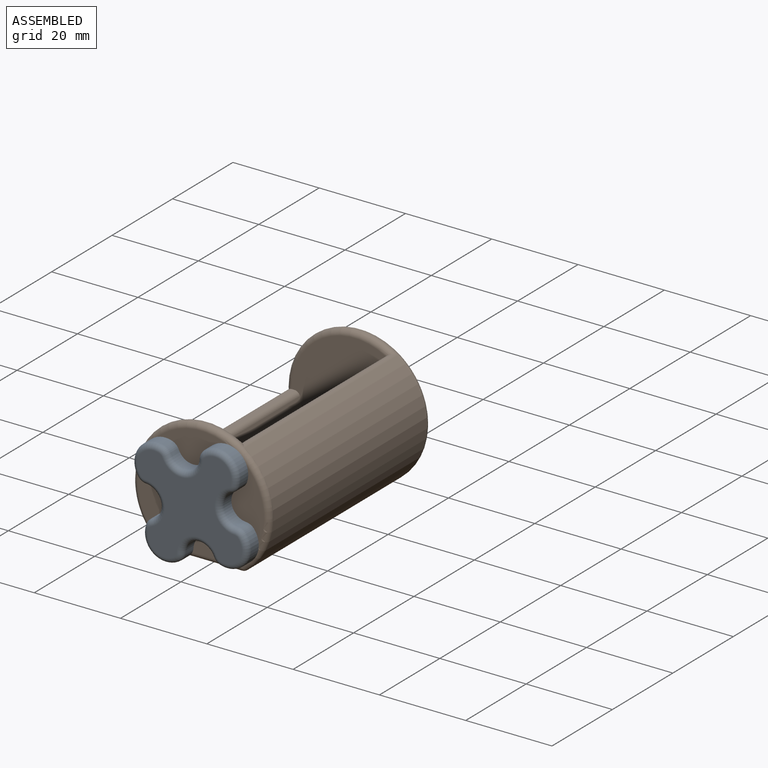
[diagram: assembled view]
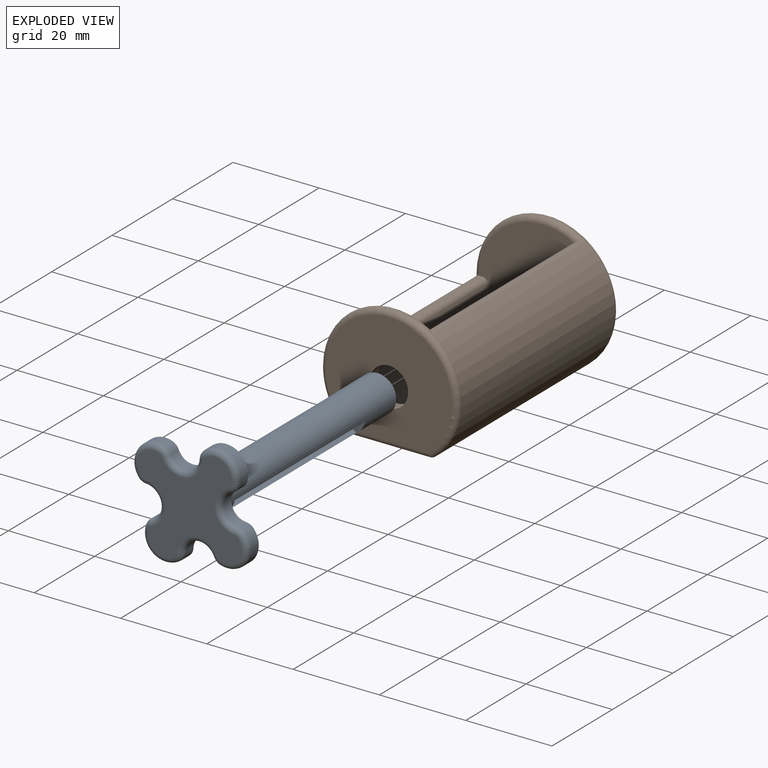
[diagram: exploded view]
GUIDED TOUR — MATED ASSEMBLY (Onshape document d453320b719630a19ccbb0db, AutoMate assembly d453320b719630a19ccbb0db_a44496a7e6a7ef12623a997a_5b4aa4a2698dda8c8e93bc68_default)

This assembly has 3 components, labeled P0..P2 below (a component is one placed occurrence of a part; the same part can appear more than once), held together by 2 mates. A mate is a constraint between two components; its type names the relative motion it leaves free:
  FASTENED — locks the two components together rigidly (no relative motion),
  REVOLUTE — leaves rotation about the listed axis free (a hinge).
Axis/direction vectors are unit vectors and 'through' points are millimeter coordinates, both in the assembly's world frame.

MATES
  1. REVOLUTE "Revolute 1": P0 <-> P1, axis (0.000, 1.000, 0.000) through (0.00, -53.34, 12.70) mm
  2. FASTENED "Fastened 1": P0 <-> P2, direction (0.000, 1.000, 0.000) through (0.00, 5.08, 12.70) mm

ASSEMBLY ORDER
  1. P0 — the base component [order heuristic]
  2. P1 [order heuristic]
  3. P2 [order heuristic]
Order-tag legend:
  [order heuristic] — this assembly is geometrically interlocked (no collision-free removal order exists), so components are listed in mate-graph order; insertion feasibility is not verified.

Of the 3 components, 3 carry the full construction recipe — the FeatureScript program that regenerates the part's solid from scratch; the rest are supplied as boundary geometry only.
Each toured component is shown spotlighted twice — in the assembled view, then in the exploded view, where a leader line traces a displaced component back to its assembled socket (saturated green if recipe-attached, orange if geometry-only; every other component desaturated gray) — followed by its recipe or geometry summary and the mates that hold it.
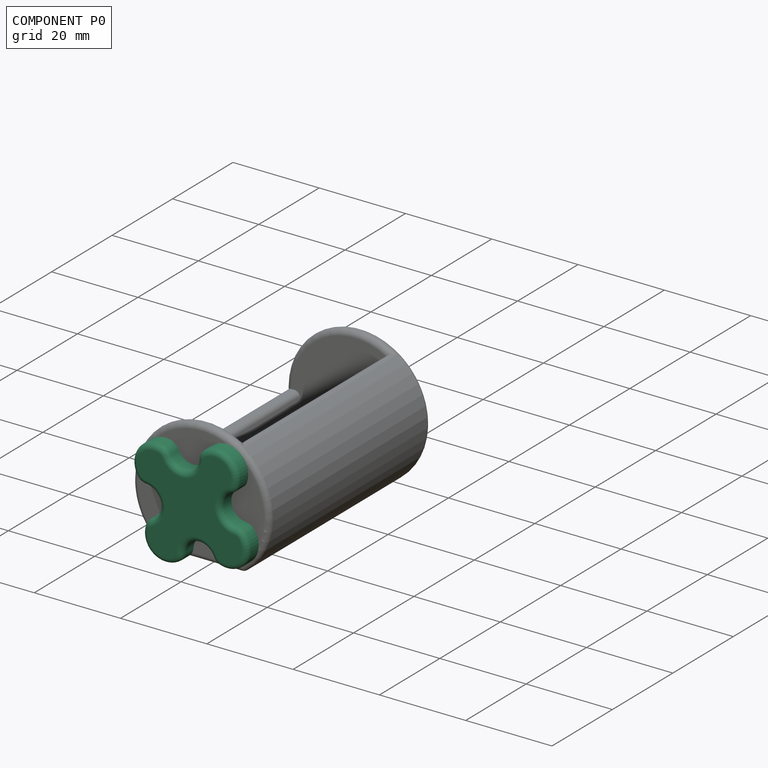
[diagram: component P0 — assembled]
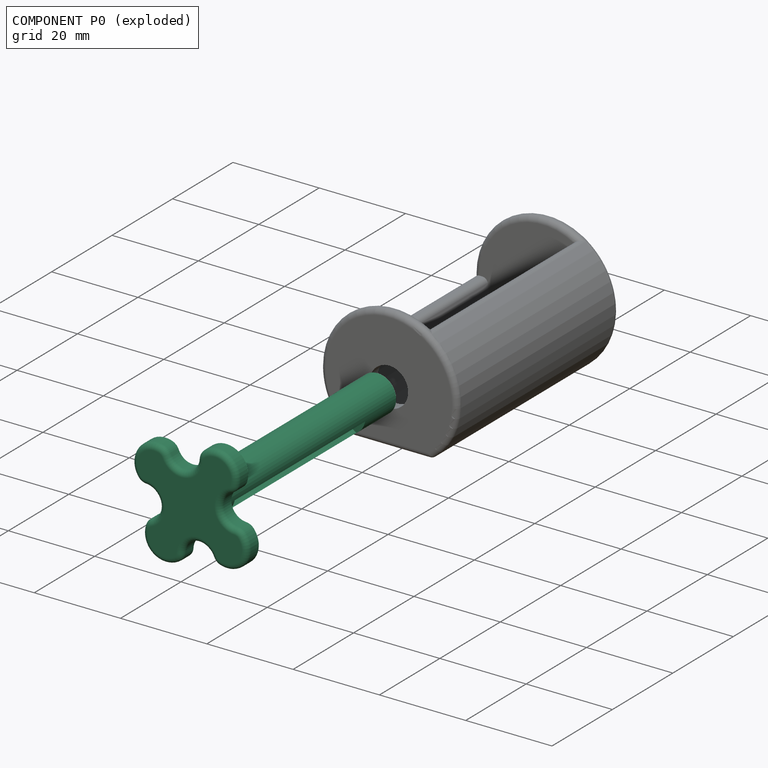
[diagram: component P0 — exploded]
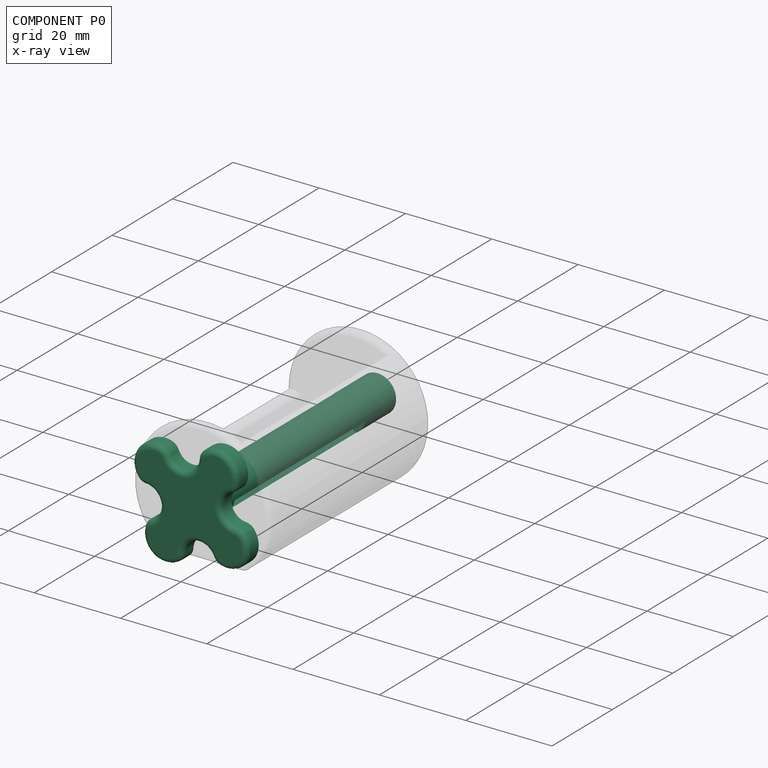
[diagram: component P0 — x-ray view]
COMPONENT P0 — recipe-attached (CADFS 00831639, mesh-verified: the recipe's output STEP matches this component's geometry to below the mesh-comparison resolution (tessellation chordal tolerance ~0.114 mm)).
Held by: REVOLUTE mate "Revolute 1" to P1; FASTENED mate "Fastened 1" to P2.
Construction recipe (FeatureScript — the CAD program that rebuilds this solid; sketch coordinates are in the units given by the * unit suffixes, e.g. mm):

FeatureScript 1511;
import(path : "onshape/std/geometry.fs", version : "1511.0");
import(path : "onshape/std/common.fs", version : "1511.0");
const mm = millimeter;
const VERTEX = EntityType.VERTEX;
const EDGE = EntityType.EDGE;
const FACE = EntityType.FACE;
const BODY = EntityType.BODY;
function v(x, y){return vector(x, y);}
function OD(order){return orderDisambiguation(order);}
function OSD(set){return originalSetDisambiguation(set);}
function TD(topology){return topologyDisambiguation(topology);}
function TDD(query){return trueDependencyDisambiguation(query);}
function sQuery(a, b, c) {return sketchEntityQuery(a, b, c);}

annotation { "Feature Type Name" : "Feature", "Feature Type Description" : "" }
export const myFeature = defineFeature(function(context is Context, id is Id, definition is map)
    precondition{}
    {
        {
            var Q0;
            Q0=qCreatedBy(makeId("Top.planeOp"),FACE);
            var sketch = newSketch(context, id + "F0", { "sketchPlane" : qUnion([Q0])});
            skArc(sketch, "E0", {"start": v(5.08, 10.16) * mm, "mid": v(0, 15.24) * mm, "end": v(-5.08, 10.16) * mm});
            skLineSegment(sketch, "E1", {"start": v(0, 14.9) * mm, "end": v(0, -12.6) * mm, "construction": true});
            skArc(sketch, "E2", {"start": v(5.08, 10.16) * mm, "mid": v(5.08, 5.08) * mm, "end": v(10.16, 5.08) * mm});
            skLineSegment(sketch, "E3.0", {"start": v(10.16, 5.08) * mm, "end": v(5.08, 10.16) * mm, "construction": true});
            skLineSegment(sketch, "E4", {"start": v(-7.19, -7.19) * mm, "end": v(7.26, 7.26) * mm, "construction": true});
            skLineSegment(sketch, "E5", {"start": v(-9.15, 9.15) * mm, "end": v(9.27, -9.27) * mm, "construction": true});
            skPoint(sketch, "E6", {"position": v(0, 0) * mm});
            skLineSegment(sketch, "E7", {"start": v(-16.53, 0) * mm, "end": v(16.65, 0) * mm, "construction": true});
            skLineSegment(sketch, "E8", {"start": v(-4.19, 19.43) * mm, "end": v(17.03, -1.8) * mm, "construction": true});
            skArc(sketch, "E9.1.0", {"start": v(10.16, -5.08) * mm, "mid": v(15.24, 0) * mm, "end": v(10.16, 5.08) * mm});
            skArc(sketch, "E9.1.1", {"start": v(10.16, -5.08) * mm, "mid": v(5.08, -5.08) * mm, "end": v(5.08, -10.16) * mm});
            skArc(sketch, "E9.2.0", {"start": v(-5.08, -10.16) * mm, "mid": v(0, -15.24) * mm, "end": v(5.08, -10.16) * mm});
            skArc(sketch, "E9.2.1", {"start": v(-5.08, -10.16) * mm, "mid": v(-5.08, -5.08) * mm, "end": v(-10.16, -5.08) * mm});
            skArc(sketch, "E9.3.0", {"start": v(-10.16, 5.08) * mm, "mid": v(-15.24, 0) * mm, "end": v(-10.16, -5.08) * mm});
            skArc(sketch, "E9.3.1", {"start": v(-10.16, 5.08) * mm, "mid": v(-5.08, 5.08) * mm, "end": v(-5.08, 10.16) * mm});
            skLineSegment(sketch, "E9.anchor1", {"start": v(0, 0) * mm, "end": v(-5.08, 10.16) * mm, "construction": true});
            skLineSegment(sketch, "E9.anchor2", {"start": v(0, 0) * mm, "end": v(-10.16, -5.08) * mm, "construction": true});
            skCircle(sketch, "E10", {"center": v(0, 0) * mm, "radius": 4.32 * mm});
            skSolve(sketch);
        }
        {
            var Q0;
            Q0=makeQuery(id+"F0.imprint","IMPRINT",FACE,{"disambiguationData":[TD([[makeQuery(id+"F0.imprint","IMPRINT",EDGE,{"derivedFrom":sQuery(id+"F0.wireOp",EDGE,"E0")}),1.0]])]});
            extrude(context, id + "F1", {"entities" : qUnion([Q0]), "depth" : 3.8 * mm, "offsetDistance" : 25.4 * mm});
        }
        {
            var Q0;
            Q0=makeQuery(id+"F0.imprint","IMPRINT",FACE,{"disambiguationData":[TD([[makeQuery(id+"F0.imprint","IMPRINT",EDGE,{"derivedFrom":sQuery(id+"F0.wireOp",EDGE,"E10")}),1.0]])]});
            extrude(context, id + "F2", {"entities" : qUnion([Q0]), "operationType" : NewBodyOperationType.ADD, "depth" : 52.07 * mm, "offsetDistance" : 25.4 * mm});
        }
        {
            var Q0;
            Q0=makeQuery(id+"F2.opExtrude","CAP_FACE",FACE,{"disambiguationData":[OSD([sQuery(id+"F0.wireOp",EDGE,"E10")])],"isStart":false});
            var sketch = newSketch(context, id + "F3", { "sketchPlane" : qUnion([Q0])});
            skLineSegment(sketch, "E11.bottom", {"start": v(1.78, 4.61) * mm, "end": v(-1.78, 4.61) * mm});
            skLineSegment(sketch, "E11.top", {"start": v(1.78, -4.61) * mm, "end": v(-1.78, -4.61) * mm});
            skLineSegment(sketch, "E11.left", {"start": v(1.78, 4.61) * mm, "end": v(1.78, -4.61) * mm});
            skLineSegment(sketch, "E11.right", {"start": v(-1.78, 4.61) * mm, "end": v(-1.78, -4.61) * mm});
            skPoint(sketch, "E11.middle", {"position": v(0, 0) * mm});
            skSolve(sketch);
        }
        {
            var Q0;
            {var subQ0=sQuery(id+"F3.wireOp",EDGE,"E11.left");var subQ1=makeQuery(id+"F2.opExtrude","CAP_EDGE",EDGE,{"disambiguationData":[OSD([sQuery(id+"F0.wireOp",EDGE,"E10")])],"isStart":false});var subQ2=makeQuery(id+"F3.imprint","INTERSECT",VERTEX,{"disambiguationData":[OD(0.0)],"derivedFrom":[subQ1,subQ0]});Q0=makeQuery(id+"F3.imprint","IMPRINT",FACE,{"disambiguationData":[TD([[makeQuery(id+"F3.imprint","IMPRINT",EDGE,{"disambiguationData":[TD([[subQ2,-1.0]])],"derivedFrom":subQ0}),-1.0]])]});}
            extrude(context, id + "F4", {"entities" : qUnion([Q0]), "operationType" : NewBodyOperationType.REMOVE, "oppositeDirection" : true, "depth" : 43.18 * mm, "offsetDistance" : 25.4 * mm});
        }
        {
            var Q0;
            {var subQ0=sQuery(id+"F0.wireOp",EDGE,"E10");Q0=makeQuery(id+"F4.boolean.opBoolean","SPLIT",FACE,{"disambiguationData":[TD([makeQuery(id+"F4.opExtrude","SWEPT_FACE",FACE,{"disambiguationData":[OSD([sQuery(id+"F3.wireOp",EDGE,"E11.left")])]})])],"derivedFrom":makeQuery(id+"F2.opExtrude","CAP_FACE",FACE,{"disambiguationData":[OSD([subQ0])],"isStart":false})});}
            var sketch = newSketch(context, id + "F5", { "sketchPlane" : qUnion([Q0])});
            skCircle(sketch, "E12", {"center": v(0, 0) * mm, "radius": 4.32 * mm});
            skSolve(sketch);
        }
        {
            var Q0;
            {var subQ1=makeQuery(id+"F4.boolean.opBoolean","COPY",EDGE,{"derivedFrom":makeQuery(id+"F4.opExtrude","CAP_EDGE",EDGE,{"disambiguationData":[OSD([sQuery(id+"F3.wireOp",EDGE,"E11.left")])],"isStart":true})});Q0=makeQuery(id+"F5.imprint","IMPRINT",FACE,{"disambiguationData":[TD([[makeQuery(id+"F5.imprint","IMPRINT",EDGE,{"derivedFrom":subQ1}),-1.0]])]});}
            var Q1;
            {var subQ1=makeQuery(id+"F4.boolean.opBoolean","COPY",EDGE,{"derivedFrom":makeQuery(id+"F4.opExtrude","CAP_EDGE",EDGE,{"disambiguationData":[OSD([sQuery(id+"F3.wireOp",EDGE,"E11.left")])],"isStart":true})});Q1=makeQuery(id+"F5.imprint","IMPRINT",FACE,{"disambiguationData":[TD([[makeQuery(id+"F5.imprint","IMPRINT",EDGE,{"derivedFrom":subQ1}),1.0]])]});}
            extrude(context, id + "F6", {"entities" : qUnion([Q0, Q1]), "operationType" : NewBodyOperationType.ADD, "depth" : 10.16 * mm, "offsetDistance" : 25.4 * mm});
        }
        {
            var Q0;
            Q0=makeQuery(id+"F1.opExtrude","SWEPT_EDGE",EDGE,{"disambiguationData":[OSD([sQuery(id+"F0.wireOp",EDGE,"E9.2.0"),sQuery(id+"F0.wireOp",EDGE,"E9.2.1")])]});
            var Q1;
            Q1=makeQuery(id+"F1.opExtrude","SWEPT_EDGE",EDGE,{"disambiguationData":[OSD([sQuery(id+"F0.wireOp",EDGE,"E9.2.1"),sQuery(id+"F0.wireOp",EDGE,"E9.3.0")])]});
            var Q2;
            Q2=makeQuery(id+"F1.opExtrude","SWEPT_EDGE",EDGE,{"disambiguationData":[OSD([sQuery(id+"F0.wireOp",EDGE,"E9.1.1"),sQuery(id+"F0.wireOp",EDGE,"E9.2.0")])]});
            var Q3;
            Q3=makeQuery(id+"F1.opExtrude","SWEPT_EDGE",EDGE,{"disambiguationData":[OSD([sQuery(id+"F0.wireOp",EDGE,"E9.1.0"),sQuery(id+"F0.wireOp",EDGE,"E9.1.1")])]});
            var Q4;
            Q4=makeQuery(id+"F1.opExtrude","SWEPT_EDGE",EDGE,{"disambiguationData":[OSD([sQuery(id+"F0.wireOp",EDGE,"E2"),sQuery(id+"F0.wireOp",EDGE,"E9.1.0")])]});
            var Q5;
            Q5=makeQuery(id+"F1.opExtrude","SWEPT_EDGE",EDGE,{"disambiguationData":[OSD([sQuery(id+"F0.wireOp",EDGE,"E0"),sQuery(id+"F0.wireOp",EDGE,"E2")])]});
            var Q6;
            Q6=makeQuery(id+"F1.opExtrude","SWEPT_EDGE",EDGE,{"disambiguationData":[OSD([sQuery(id+"F0.wireOp",EDGE,"E9.3.0"),sQuery(id+"F0.wireOp",EDGE,"E9.3.1")])]});
            var Q7;
            Q7=makeQuery(id+"F1.opExtrude","SWEPT_EDGE",EDGE,{"disambiguationData":[OSD([sQuery(id+"F0.wireOp",EDGE,"E0"),sQuery(id+"F0.wireOp",EDGE,"E9.3.1")])]});
            fillet(context, id + "F7", {"entities" : qUnion([Q0, Q1, Q2, Q3, Q4, Q5, Q6, Q7]), "radius" : 2.54 * mm, "tangentPropagation" : true, "allowEdgeOverflow" : false});
        }
        {
            var Q0;
            Q0=makeQuery(id+"F1.opExtrude","CAP_EDGE",EDGE,{"disambiguationData":[OSD([sQuery(id+"F0.wireOp",EDGE,"E9.3.0")])],"isStart":true});
            var Q1;
            Q1=makeQuery(id+"F1.opExtrude","CAP_EDGE",EDGE,{"disambiguationData":[OSD([sQuery(id+"F0.wireOp",EDGE,"E9.2.1")])],"isStart":true});
            var Q2;
            Q2=makeQuery(id+"F1.opExtrude","CAP_EDGE",EDGE,{"disambiguationData":[OSD([sQuery(id+"F0.wireOp",EDGE,"E9.2.0")])],"isStart":true});
            var Q3;
            {var subQ0=sQuery(id+"F0.wireOp",EDGE,"E10");var subQ1=sQuery(id+"F0.wireOp",EDGE,"E9.3.0");var subQ2=sQuery(id+"F0.wireOp",EDGE,"E9.2.1");Q3=makeQuery(id+"F7.opFillet","BLEND_EDGE",EDGE,{"blendedFrom":[makeQuery(id+"F1.opExtrude","SWEPT_EDGE",EDGE,{"disambiguationData":[OSD([subQ2,subQ1])]}),makeQuery(id+"F2.boolean.opBoolean","MERGE",FACE,{"derivedFrom":[makeQuery(id+"F1.opExtrude","CAP_FACE",FACE,{"disambiguationData":[OSD([sQuery(id+"F0.wireOp",EDGE,"E0"),sQuery(id+"F0.wireOp",EDGE,"E2"),sQuery(id+"F0.wireOp",EDGE,"E9.1.0"),sQuery(id+"F0.wireOp",EDGE,"E9.1.1"),sQuery(id+"F0.wireOp",EDGE,"E9.2.0"),subQ2,subQ1,sQuery(id+"F0.wireOp",EDGE,"E9.3.1"),subQ0])],"isStart":true}),makeQuery(id+"F2.opExtrude","CAP_FACE",FACE,{"disambiguationData":[OSD([subQ0])],"isStart":true})]})],"blendedInto":[makeQuery(id+"F2.boolean.opBoolean","MERGE",FACE,{"derivedFrom":[makeQuery(id+"F1.opExtrude","CAP_FACE",FACE,{"disambiguationData":[OSD([sQuery(id+"F0.wireOp",EDGE,"E0"),sQuery(id+"F0.wireOp",EDGE,"E2"),sQuery(id+"F0.wireOp",EDGE,"E9.1.0"),sQuery(id+"F0.wireOp",EDGE,"E9.1.1"),sQuery(id+"F0.wireOp",EDGE,"E9.2.0"),subQ2,subQ1,sQuery(id+"F0.wireOp",EDGE,"E9.3.1"),subQ0])],"isStart":true}),makeQuery(id+"F2.opExtrude","CAP_FACE",FACE,{"disambiguationData":[OSD([subQ0])],"isStart":true})]})]});}
            var Q4;
            Q4=makeQuery(id+"F1.opExtrude","CAP_EDGE",EDGE,{"disambiguationData":[OSD([sQuery(id+"F0.wireOp",EDGE,"E9.1.1")])],"isStart":true});
            var Q5;
            {var subQ0=sQuery(id+"F0.wireOp",EDGE,"E10");var subQ1=sQuery(id+"F0.wireOp",EDGE,"E9.2.0");var subQ2=sQuery(id+"F0.wireOp",EDGE,"E9.1.1");Q5=makeQuery(id+"F7.opFillet","BLEND_EDGE",EDGE,{"blendedFrom":[makeQuery(id+"F1.opExtrude","SWEPT_EDGE",EDGE,{"disambiguationData":[OSD([subQ2,subQ1])]}),makeQuery(id+"F2.boolean.opBoolean","MERGE",FACE,{"derivedFrom":[makeQuery(id+"F1.opExtrude","CAP_FACE",FACE,{"disambiguationData":[OSD([sQuery(id+"F0.wireOp",EDGE,"E0"),sQuery(id+"F0.wireOp",EDGE,"E2"),sQuery(id+"F0.wireOp",EDGE,"E9.1.0"),subQ2,subQ1,sQuery(id+"F0.wireOp",EDGE,"E9.2.1"),sQuery(id+"F0.wireOp",EDGE,"E9.3.0"),sQuery(id+"F0.wireOp",EDGE,"E9.3.1"),subQ0])],"isStart":true}),makeQuery(id+"F2.opExtrude","CAP_FACE",FACE,{"disambiguationData":[OSD([subQ0])],"isStart":true})]})],"blendedInto":[makeQuery(id+"F2.boolean.opBoolean","MERGE",FACE,{"derivedFrom":[makeQuery(id+"F1.opExtrude","CAP_FACE",FACE,{"disambiguationData":[OSD([sQuery(id+"F0.wireOp",EDGE,"E0"),sQuery(id+"F0.wireOp",EDGE,"E2"),sQuery(id+"F0.wireOp",EDGE,"E9.1.0"),subQ2,subQ1,sQuery(id+"F0.wireOp",EDGE,"E9.2.1"),sQuery(id+"F0.wireOp",EDGE,"E9.3.0"),sQuery(id+"F0.wireOp",EDGE,"E9.3.1"),subQ0])],"isStart":true}),makeQuery(id+"F2.opExtrude","CAP_FACE",FACE,{"disambiguationData":[OSD([subQ0])],"isStart":true})]})]});}
            var Q6;
            {var subQ0=sQuery(id+"F0.wireOp",EDGE,"E10");var subQ1=sQuery(id+"F0.wireOp",EDGE,"E9.1.1");var subQ2=sQuery(id+"F0.wireOp",EDGE,"E9.1.0");Q6=makeQuery(id+"F7.opFillet","BLEND_EDGE",EDGE,{"blendedFrom":[makeQuery(id+"F1.opExtrude","SWEPT_EDGE",EDGE,{"disambiguationData":[OSD([subQ2,subQ1])]}),makeQuery(id+"F2.boolean.opBoolean","MERGE",FACE,{"derivedFrom":[makeQuery(id+"F1.opExtrude","CAP_FACE",FACE,{"disambiguationData":[OSD([sQuery(id+"F0.wireOp",EDGE,"E0"),sQuery(id+"F0.wireOp",EDGE,"E2"),subQ2,subQ1,sQuery(id+"F0.wireOp",EDGE,"E9.2.0"),sQuery(id+"F0.wireOp",EDGE,"E9.2.1"),sQuery(id+"F0.wireOp",EDGE,"E9.3.0"),sQuery(id+"F0.wireOp",EDGE,"E9.3.1"),subQ0])],"isStart":true}),makeQuery(id+"F2.opExtrude","CAP_FACE",FACE,{"disambiguationData":[OSD([subQ0])],"isStart":true})]})],"blendedInto":[makeQuery(id+"F2.boolean.opBoolean","MERGE",FACE,{"derivedFrom":[makeQuery(id+"F1.opExtrude","CAP_FACE",FACE,{"disambiguationData":[OSD([sQuery(id+"F0.wireOp",EDGE,"E0"),sQuery(id+"F0.wireOp",EDGE,"E2"),subQ2,subQ1,sQuery(id+"F0.wireOp",EDGE,"E9.2.0"),sQuery(id+"F0.wireOp",EDGE,"E9.2.1"),sQuery(id+"F0.wireOp",EDGE,"E9.3.0"),sQuery(id+"F0.wireOp",EDGE,"E9.3.1"),subQ0])],"isStart":true}),makeQuery(id+"F2.opExtrude","CAP_FACE",FACE,{"disambiguationData":[OSD([subQ0])],"isStart":true})]})]});}
            var Q7;
            Q7=makeQuery(id+"F1.opExtrude","CAP_EDGE",EDGE,{"disambiguationData":[OSD([sQuery(id+"F0.wireOp",EDGE,"E9.1.0")])],"isStart":true});
            var Q8;
            {var subQ0=sQuery(id+"F0.wireOp",EDGE,"E10");var subQ1=sQuery(id+"F0.wireOp",EDGE,"E9.1.0");var subQ2=sQuery(id+"F0.wireOp",EDGE,"E2");Q8=makeQuery(id+"F7.opFillet","BLEND_EDGE",EDGE,{"blendedFrom":[makeQuery(id+"F1.opExtrude","SWEPT_EDGE",EDGE,{"disambiguationData":[OSD([subQ2,subQ1])]}),makeQuery(id+"F2.boolean.opBoolean","MERGE",FACE,{"derivedFrom":[makeQuery(id+"F1.opExtrude","CAP_FACE",FACE,{"disambiguationData":[OSD([sQuery(id+"F0.wireOp",EDGE,"E0"),subQ2,subQ1,sQuery(id+"F0.wireOp",EDGE,"E9.1.1"),sQuery(id+"F0.wireOp",EDGE,"E9.2.0"),sQuery(id+"F0.wireOp",EDGE,"E9.2.1"),sQuery(id+"F0.wireOp",EDGE,"E9.3.0"),sQuery(id+"F0.wireOp",EDGE,"E9.3.1"),subQ0])],"isStart":true}),makeQuery(id+"F2.opExtrude","CAP_FACE",FACE,{"disambiguationData":[OSD([subQ0])],"isStart":true})]})],"blendedInto":[makeQuery(id+"F2.boolean.opBoolean","MERGE",FACE,{"derivedFrom":[makeQuery(id+"F1.opExtrude","CAP_FACE",FACE,{"disambiguationData":[OSD([sQuery(id+"F0.wireOp",EDGE,"E0"),subQ2,subQ1,sQuery(id+"F0.wireOp",EDGE,"E9.1.1"),sQuery(id+"F0.wireOp",EDGE,"E9.2.0"),sQuery(id+"F0.wireOp",EDGE,"E9.2.1"),sQuery(id+"F0.wireOp",EDGE,"E9.3.0"),sQuery(id+"F0.wireOp",EDGE,"E9.3.1"),subQ0])],"isStart":true}),makeQuery(id+"F2.opExtrude","CAP_FACE",FACE,{"disambiguationData":[OSD([subQ0])],"isStart":true})]})]});}
            var Q9;
            Q9=makeQuery(id+"F1.opExtrude","CAP_EDGE",EDGE,{"disambiguationData":[OSD([sQuery(id+"F0.wireOp",EDGE,"E2")])],"isStart":true});
            var Q10;
            {var subQ0=sQuery(id+"F0.wireOp",EDGE,"E10");var subQ1=sQuery(id+"F0.wireOp",EDGE,"E2");var subQ2=sQuery(id+"F0.wireOp",EDGE,"E0");Q10=makeQuery(id+"F7.opFillet","BLEND_EDGE",EDGE,{"blendedFrom":[makeQuery(id+"F1.opExtrude","SWEPT_EDGE",EDGE,{"disambiguationData":[OSD([subQ2,subQ1])]}),makeQuery(id+"F2.boolean.opBoolean","MERGE",FACE,{"derivedFrom":[makeQuery(id+"F1.opExtrude","CAP_FACE",FACE,{"disambiguationData":[OSD([subQ2,subQ1,sQuery(id+"F0.wireOp",EDGE,"E9.1.0"),sQuery(id+"F0.wireOp",EDGE,"E9.1.1"),sQuery(id+"F0.wireOp",EDGE,"E9.2.0"),sQuery(id+"F0.wireOp",EDGE,"E9.2.1"),sQuery(id+"F0.wireOp",EDGE,"E9.3.0"),sQuery(id+"F0.wireOp",EDGE,"E9.3.1"),subQ0])],"isStart":true}),makeQuery(id+"F2.opExtrude","CAP_FACE",FACE,{"disambiguationData":[OSD([subQ0])],"isStart":true})]})],"blendedInto":[makeQuery(id+"F2.boolean.opBoolean","MERGE",FACE,{"derivedFrom":[makeQuery(id+"F1.opExtrude","CAP_FACE",FACE,{"disambiguationData":[OSD([subQ2,subQ1,sQuery(id+"F0.wireOp",EDGE,"E9.1.0"),sQuery(id+"F0.wireOp",EDGE,"E9.1.1"),sQuery(id+"F0.wireOp",EDGE,"E9.2.0"),sQuery(id+"F0.wireOp",EDGE,"E9.2.1"),sQuery(id+"F0.wireOp",EDGE,"E9.3.0"),sQuery(id+"F0.wireOp",EDGE,"E9.3.1"),subQ0])],"isStart":true}),makeQuery(id+"F2.opExtrude","CAP_FACE",FACE,{"disambiguationData":[OSD([subQ0])],"isStart":true})]})]});}
            var Q11;
            Q11=makeQuery(id+"F1.opExtrude","CAP_EDGE",EDGE,{"disambiguationData":[OSD([sQuery(id+"F0.wireOp",EDGE,"E0")])],"isStart":true});
            var Q12;
            {var subQ0=sQuery(id+"F0.wireOp",EDGE,"E10");var subQ1=sQuery(id+"F0.wireOp",EDGE,"E9.3.1");var subQ2=sQuery(id+"F0.wireOp",EDGE,"E0");Q12=makeQuery(id+"F7.opFillet","BLEND_EDGE",EDGE,{"blendedFrom":[makeQuery(id+"F1.opExtrude","SWEPT_EDGE",EDGE,{"disambiguationData":[OSD([subQ2,subQ1])]}),makeQuery(id+"F2.boolean.opBoolean","MERGE",FACE,{"derivedFrom":[makeQuery(id+"F1.opExtrude","CAP_FACE",FACE,{"disambiguationData":[OSD([subQ2,sQuery(id+"F0.wireOp",EDGE,"E2"),sQuery(id+"F0.wireOp",EDGE,"E9.1.0"),sQuery(id+"F0.wireOp",EDGE,"E9.1.1"),sQuery(id+"F0.wireOp",EDGE,"E9.2.0"),sQuery(id+"F0.wireOp",EDGE,"E9.2.1"),sQuery(id+"F0.wireOp",EDGE,"E9.3.0"),subQ1,subQ0])],"isStart":true}),makeQuery(id+"F2.opExtrude","CAP_FACE",FACE,{"disambiguationData":[OSD([subQ0])],"isStart":true})]})],"blendedInto":[makeQuery(id+"F2.boolean.opBoolean","MERGE",FACE,{"derivedFrom":[makeQuery(id+"F1.opExtrude","CAP_FACE",FACE,{"disambiguationData":[OSD([subQ2,sQuery(id+"F0.wireOp",EDGE,"E2"),sQuery(id+"F0.wireOp",EDGE,"E9.1.0"),sQuery(id+"F0.wireOp",EDGE,"E9.1.1"),sQuery(id+"F0.wireOp",EDGE,"E9.2.0"),sQuery(id+"F0.wireOp",EDGE,"E9.2.1"),sQuery(id+"F0.wireOp",EDGE,"E9.3.0"),subQ1,subQ0])],"isStart":true}),makeQuery(id+"F2.opExtrude","CAP_FACE",FACE,{"disambiguationData":[OSD([subQ0])],"isStart":true})]})]});}
            var Q13;
            Q13=makeQuery(id+"F1.opExtrude","CAP_EDGE",EDGE,{"disambiguationData":[OSD([sQuery(id+"F0.wireOp",EDGE,"E9.3.1")])],"isStart":true});
            var Q14;
            {var subQ0=sQuery(id+"F0.wireOp",EDGE,"E10");Q14=makeQuery(id+"F2.boolean.opBoolean","MERGE",FACE,{"derivedFrom":[makeQuery(id+"F1.opExtrude","CAP_FACE",FACE,{"disambiguationData":[OSD([sQuery(id+"F0.wireOp",EDGE,"E0"),sQuery(id+"F0.wireOp",EDGE,"E2"),sQuery(id+"F0.wireOp",EDGE,"E9.1.0"),sQuery(id+"F0.wireOp",EDGE,"E9.1.1"),sQuery(id+"F0.wireOp",EDGE,"E9.2.0"),sQuery(id+"F0.wireOp",EDGE,"E9.2.1"),sQuery(id+"F0.wireOp",EDGE,"E9.3.0"),sQuery(id+"F0.wireOp",EDGE,"E9.3.1"),subQ0])],"isStart":true}),makeQuery(id+"F2.opExtrude","CAP_FACE",FACE,{"disambiguationData":[OSD([subQ0])],"isStart":true})]});}
            fillet(context, id + "F8", {"entities" : qUnion([Q0, Q1, Q2, Q3, Q4, Q5, Q6, Q7, Q8, Q9, Q10, Q11, Q12, Q13, Q14]), "radius" : 1.27 * mm, "tangentPropagation" : true, "allowEdgeOverflow" : false});
        }
    });
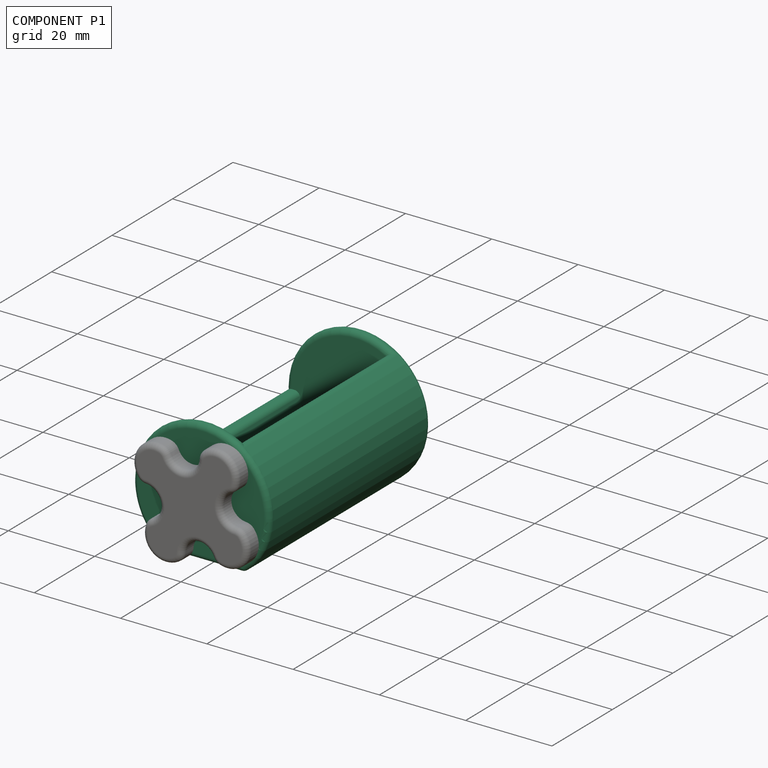
[diagram: component P1 — assembled]
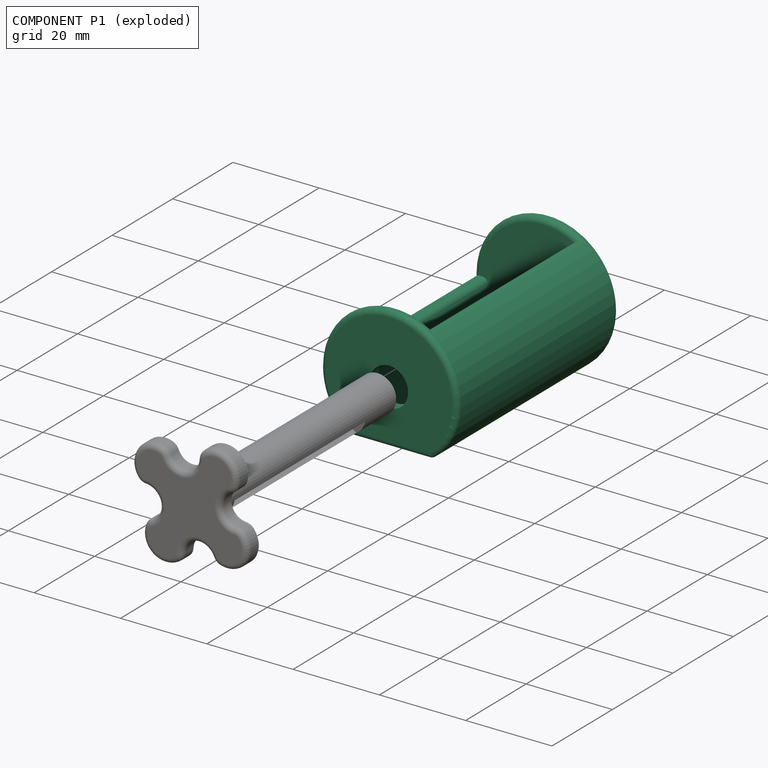
[diagram: component P1 — exploded]
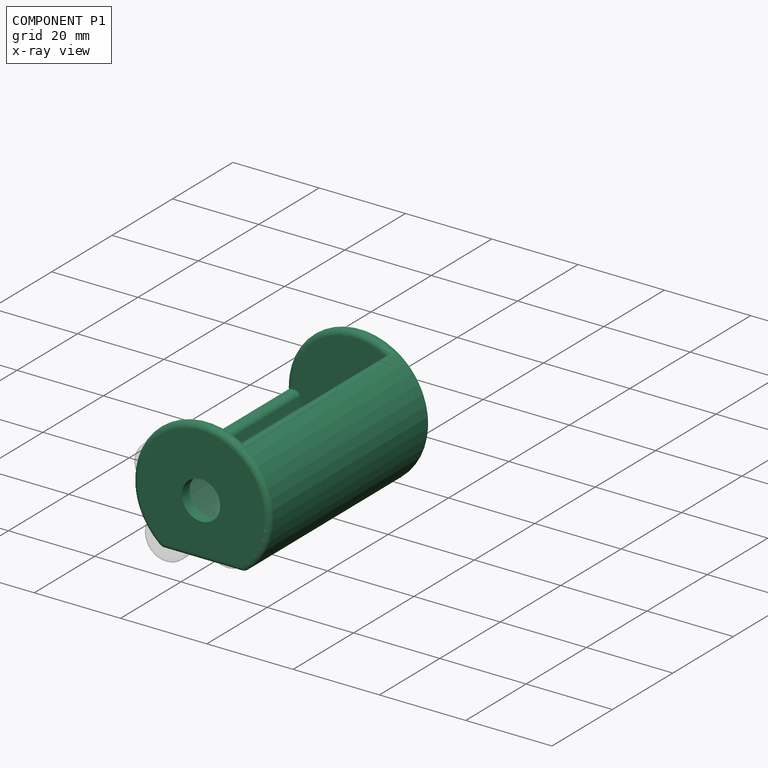
[diagram: component P1 — x-ray view]
COMPONENT P1 — recipe-attached (CADFS 00831638, mesh-verified: the recipe's output STEP matches this component's geometry to below the mesh-comparison resolution (tessellation chordal tolerance ~0.102 mm)).
Held by: REVOLUTE mate "Revolute 1" to P0.
Construction recipe (FeatureScript — the CAD program that rebuilds this solid; sketch coordinates are in the units given by the * unit suffixes, e.g. mm):

FeatureScript 1511;
import(path : "onshape/std/geometry.fs", version : "1511.0");
import(path : "onshape/std/common.fs", version : "1511.0");
const mm = millimeter;
const VERTEX = EntityType.VERTEX;
const EDGE = EntityType.EDGE;
const FACE = EntityType.FACE;
const BODY = EntityType.BODY;
function v(x, y){return vector(x, y);}
function OD(order){return orderDisambiguation(order);}
function OSD(set){return originalSetDisambiguation(set);}
function TD(topology){return topologyDisambiguation(topology);}
function TDD(query){return trueDependencyDisambiguation(query);}
function sQuery(a, b, c) {return sketchEntityQuery(a, b, c);}

annotation { "Feature Type Name" : "Feature", "Feature Type Description" : "" }
export const myFeature = defineFeature(function(context is Context, id is Id, definition is map)
    precondition{}
    {
        {
            var Q0;
            Q0=qCreatedBy(makeId("Front.planeOp"),FACE);
            var sketch = newSketch(context, id + "F0", { "sketchPlane" : qUnion([Q0])});
            skLineSegment(sketch, "E0", {"start": v(-9.53, 0) * mm, "end": v(9.53, 0) * mm});
            skPoint(sketch, "E1", {"position": v(0, 0) * mm});
            skArc(sketch, "E2", {"start": v(9.53, 0) * mm, "mid": v(0, 28.58) * mm, "end": v(-9.53, 0) * mm});
            skLineSegment(sketch, "E3", {"start": v(0, 0) * mm, "end": v(0, 0) * mm});
            skCircle(sketch, "E4", {"center": v(0, 12.7) * mm, "radius": 4.45 * mm});
            skLineSegment(sketch, "E5", {"start": v(7.94, 26.45) * mm, "end": v(6.35, 23.7) * mm});
            skLineSegment(sketch, "E6", {"start": v(7.94, 26.45) * mm, "end": v(-7.33, 0) * mm, "construction": true});
            skLineSegment(sketch, "E7", {"start": v(5.54, 1.27) * mm, "end": v(-5.54, 1.27) * mm});
            skLineSegment(sketch, "E8", {"start": v(-12.7, 12.7) * mm, "end": v(-15.88, 12.7) * mm});
            skArc(sketch, "E9", {"start": v(5.54, 1.27) * mm, "mid": v(0, 25.4) * mm, "end": v(-5.54, 1.27) * mm});
            skSolve(sketch);
        }
        {
            var Q0;
            {var subQ0=sQuery(id+"F0.wireOp",EDGE,"E5");Q0=makeQuery(id+"F0.imprint","IMPRINT",FACE,{"disambiguationData":[TD([[makeQuery(id+"F0.imprint","IMPRINT",EDGE,{"derivedFrom":subQ0}),-1.0]])]});}
            var Q1;
            Q1=makeQuery(id+"F0.imprint","IMPRINT",FACE,{"disambiguationData":[TD([[makeQuery(id+"F0.imprint","IMPRINT",EDGE,{"derivedFrom":sQuery(id+"F0.wireOp",EDGE,"E4")}),-1.0]])]});
            extrude(context, id + "F1", {"entities" : qUnion([Q0, Q1]), "depth" : 2.54 * mm, "offsetDistance" : 25.4 * mm});
        }
        {
            var Q0;
            {var subQ2=sQuery(id+"F0.wireOp",EDGE,"E8");Q0=makeQuery(id+"F0.imprint","IMPRINT",FACE,{"disambiguationData":[TD([[makeQuery(id+"F0.imprint","IMPRINT",EDGE,{"derivedFrom":subQ2}),1.0]])]});}
            var Q1;
            {var subQ4=sQuery(id+"F0.wireOp",EDGE,"E7");Q1=makeQuery(id+"F0.imprint","IMPRINT",FACE,{"disambiguationData":[TD([[makeQuery(id+"F0.imprint","IMPRINT",EDGE,{"derivedFrom":subQ4}),1.0]])]});}
            var Q2;
            {var subQ6=sQuery(id+"F0.wireOp",EDGE,"E5");Q2=makeQuery(id+"F0.imprint","IMPRINT",FACE,{"disambiguationData":[TD([[makeQuery(id+"F0.imprint","IMPRINT",EDGE,{"derivedFrom":subQ6}),1.0]])]});}
            extrude(context, id + "F2", {"entities" : qUnion([Q0, Q1, Q2]), "operationType" : NewBodyOperationType.ADD, "depth" : 50.8 * mm, "offsetDistance" : 25.4 * mm});
        }
        {
            var Q0;
            Q0=makeQuery(id+"F2.opExtrude","CAP_FACE",FACE,{"disambiguationData":[OSD([sQuery(id+"F0.wireOp",EDGE,"E0"),sQuery(id+"F0.wireOp",EDGE,"E2"),sQuery(id+"F0.wireOp",EDGE,"E5"),sQuery(id+"F0.wireOp",EDGE,"E7"),sQuery(id+"F0.wireOp",EDGE,"E8"),sQuery(id+"F0.wireOp",EDGE,"E9")])],"isStart":false});
            var sketch = newSketch(context, id + "F3", { "sketchPlane" : qUnion([Q0])});
            skCircle(sketch, "E10.0", {"center": v(0, 12.7) * mm, "radius": 4.45 * mm});
            skArc(sketch, "E11.0", {"start": v(7.94, 26.45) * mm, "mid": v(-7.94, 26.45) * mm, "end": v(-15.88, 12.7) * mm});
            skArc(sketch, "E11.1", {"start": v(-15.88, 12.7) * mm, "mid": v(-14.2, 5.6) * mm, "end": v(-9.52, 0) * mm});
            skLineSegment(sketch, "E11.2", {"start": v(-9.53, 0) * mm, "end": v(9.53, 0) * mm});
            skArc(sketch, "E11.3", {"start": v(9.52, 0) * mm, "mid": v(15.85, 13.65) * mm, "end": v(7.94, 26.45) * mm});
            skArc(sketch, "E12.0", {"start": v(-12.7, 12.7) * mm, "mid": v(-10.76, 5.96) * mm, "end": v(-5.54, 1.27) * mm});
            skCircle(sketch, "E13", {"center": v(0, 12.7) * mm, "radius": 12.7 * mm});
            skSolve(sketch);
        }
        {
            var Q0;
            Q0=makeQuery(id+"F3.imprint","IMPRINT",FACE,{"disambiguationData":[TD([[makeQuery(id+"F3.imprint","IMPRINT",EDGE,{"derivedFrom":sQuery(id+"F3.wireOp",EDGE,"E10.0")}),-1.0]])]});
            var Q1;
            {var subQ5=sQuery(id+"F3.wireOp",EDGE,"E11.1");Q1=makeQuery(id+"F3.imprint","IMPRINT",FACE,{"disambiguationData":[TD([[makeQuery(id+"F3.imprint","IMPRINT",EDGE,{"derivedFrom":subQ5}),1.0]])]});}
            var Q2;
            {var subQ5=sQuery(id+"F3.wireOp",EDGE,"E11.3");Q2=makeQuery(id+"F3.imprint","IMPRINT",FACE,{"disambiguationData":[TD([[makeQuery(id+"F3.imprint","IMPRINT",EDGE,{"derivedFrom":subQ5}),1.0]])]});}
            var Q3;
            {var subQ1=makeQuery(id+"F2.opExtrude","CAP_EDGE",EDGE,{"disambiguationData":[OSD([sQuery(id+"F0.wireOp",EDGE,"E7")])],"isStart":false});Q3=makeQuery(id+"F3.imprint","IMPRINT",FACE,{"disambiguationData":[TD([[makeQuery(id+"F3.imprint","IMPRINT",EDGE,{"derivedFrom":subQ1}),1.0]])]});}
            var Q4;
            Q4=makeQuery(id+"F3.imprint","IMPRINT",FACE,{"disambiguationData":[TD([[makeQuery(id+"F3.imprint","IMPRINT",EDGE,{"derivedFrom":sQuery(id+"F3.wireOp",EDGE,"E11.0")}),1.0]])]});
            extrude(context, id + "F4", {"entities" : qUnion([Q0, Q1, Q2, Q3, Q4]), "operationType" : NewBodyOperationType.ADD, "depth" : 2.54 * mm, "offsetDistance" : 25.4 * mm});
        }
        {
            var Q0;
            Q0=makeQuery(id+"F2.opExtrude","SWEPT_EDGE",EDGE,{"disambiguationData":[OSD([sQuery(id+"F0.wireOp",EDGE,"E2"),sQuery(id+"F0.wireOp",EDGE,"E8")])]});
            var Q1;
            Q1=makeQuery(id+"F2.opExtrude","SWEPT_EDGE",EDGE,{"disambiguationData":[OSD([sQuery(id+"F0.wireOp",EDGE,"E8"),sQuery(id+"F0.wireOp",EDGE,"E9")])]});
            var Q2;
            Q2=makeQuery(id+"F2.opExtrude","SWEPT_EDGE",EDGE,{"disambiguationData":[OSD([sQuery(id+"F0.wireOp",EDGE,"E5"),sQuery(id+"F0.wireOp",EDGE,"E9")])]});
            var Q3;
            Q3=makeQuery(id+"F2.opExtrude","SWEPT_EDGE",EDGE,{"disambiguationData":[OSD([sQuery(id+"F0.wireOp",EDGE,"E2"),sQuery(id+"F0.wireOp",EDGE,"E5")])]});
            var Q4;
            Q4=makeQuery(id+"F1.opExtrude","CAP_EDGE",EDGE,{"disambiguationData":[OSD([sQuery(id+"F0.wireOp",EDGE,"E2")])],"isStart":false});
            var Q5;
            {var subQ0=sQuery(id+"F0.wireOp",EDGE,"E2");var subQ1=sQuery(id+"F0.wireOp",EDGE,"E0");Q5=makeQuery(id+"F2.boolean.opBoolean","MERGE",EDGE,{"derivedFrom":[makeQuery(id+"F1.opExtrude","CAP_EDGE",EDGE,{"disambiguationData":[OSD([subQ0])],"isStart":true}),makeQuery(id+"F2.opExtrude","CAP_EDGE",EDGE,{"disambiguationData":[OSD([subQ0]),TDD([makeQuery(id+"F0.imprint","IMPRINT",EDGE,{"disambiguationData":[TD([[makeQuery(id+"F0.imprint","INTERSECT",VERTEX,{"disambiguationData":[OD(1.0)],"derivedFrom":[subQ1,subQ0]}),-1.0]])],"derivedFrom":subQ0})])],"isStart":true}),makeQuery(id+"F2.opExtrude","CAP_EDGE",EDGE,{"disambiguationData":[OSD([subQ0]),TDD([makeQuery(id+"F0.imprint","IMPRINT",EDGE,{"disambiguationData":[TD([[makeQuery(id+"F0.imprint","INTERSECT",VERTEX,{"disambiguationData":[OD(0.0)],"derivedFrom":[subQ1,subQ0]}),1.0]])],"derivedFrom":subQ0})])],"isStart":true})]});}
            var Q6;
            Q6=makeQuery(id+"F4.opExtrude","CAP_EDGE",EDGE,{"disambiguationData":[OSD([sQuery(id+"F3.wireOp",EDGE,"E11.0"),sQuery(id+"F3.wireOp",EDGE,"E11.1"),sQuery(id+"F3.wireOp",EDGE,"E11.3")])],"isStart":false});
            var Q7;
            Q7=makeQuery(id+"F4.opExtrude","CAP_EDGE",EDGE,{"disambiguationData":[OSD([sQuery(id+"F3.wireOp",EDGE,"E11.0"),sQuery(id+"F3.wireOp",EDGE,"E11.1"),sQuery(id+"F3.wireOp",EDGE,"E11.3")])],"isStart":true});
            var Q8;
            {var subQ0=sQuery(id+"F0.wireOp",EDGE,"E2");var subQ1=sQuery(id+"F0.wireOp",EDGE,"E0");Q8=makeQuery(id+"F4.boolean.opBoolean","MERGE",EDGE,{"derivedFrom":[makeQuery(id+"F2.opExtrude","SWEPT_EDGE",EDGE,{"disambiguationData":[OSD([subQ1,subQ0]),TDD([makeQuery(id+"F0.imprint","INTERSECT",VERTEX,{"disambiguationData":[OD(0.0)],"derivedFrom":[subQ1,subQ0]})])]}),makeQuery(id+"F4.opExtrude","SWEPT_EDGE",EDGE,{"disambiguationData":[OSD([sQuery(id+"F3.wireOp",EDGE,"E11.1"),sQuery(id+"F3.wireOp",EDGE,"E11.2")])]})]});}
            var Q9;
            {var subQ0=sQuery(id+"F0.wireOp",EDGE,"E2");var subQ1=sQuery(id+"F0.wireOp",EDGE,"E0");Q9=makeQuery(id+"F4.boolean.opBoolean","MERGE",EDGE,{"derivedFrom":[makeQuery(id+"F2.opExtrude","SWEPT_EDGE",EDGE,{"disambiguationData":[OSD([subQ1,subQ0]),TDD([makeQuery(id+"F0.imprint","INTERSECT",VERTEX,{"disambiguationData":[OD(1.0)],"derivedFrom":[subQ1,subQ0]})])]}),makeQuery(id+"F4.opExtrude","SWEPT_EDGE",EDGE,{"disambiguationData":[OSD([sQuery(id+"F3.wireOp",EDGE,"E11.2"),sQuery(id+"F3.wireOp",EDGE,"E11.3")])]})]});}
            var Q10;
            Q10=makeQuery(id+"F4.opExtrude","CAP_EDGE",EDGE,{"disambiguationData":[OSD([sQuery(id+"F3.wireOp",EDGE,"E11.2")])],"isStart":false});
            var Q11;
            Q11=makeQuery(id+"F2.opExtrude","CAP_EDGE",EDGE,{"disambiguationData":[OSD([sQuery(id+"F0.wireOp",EDGE,"E0")])],"isStart":true});
            fillet(context, id + "F5", {"entities" : qUnion([Q0, Q1, Q2, Q3, Q4, Q5, Q6, Q7, Q8, Q9, Q10, Q11]), "radius" : 1.27 * mm, "tangentPropagation" : true, "allowEdgeOverflow" : false});
        }
    });
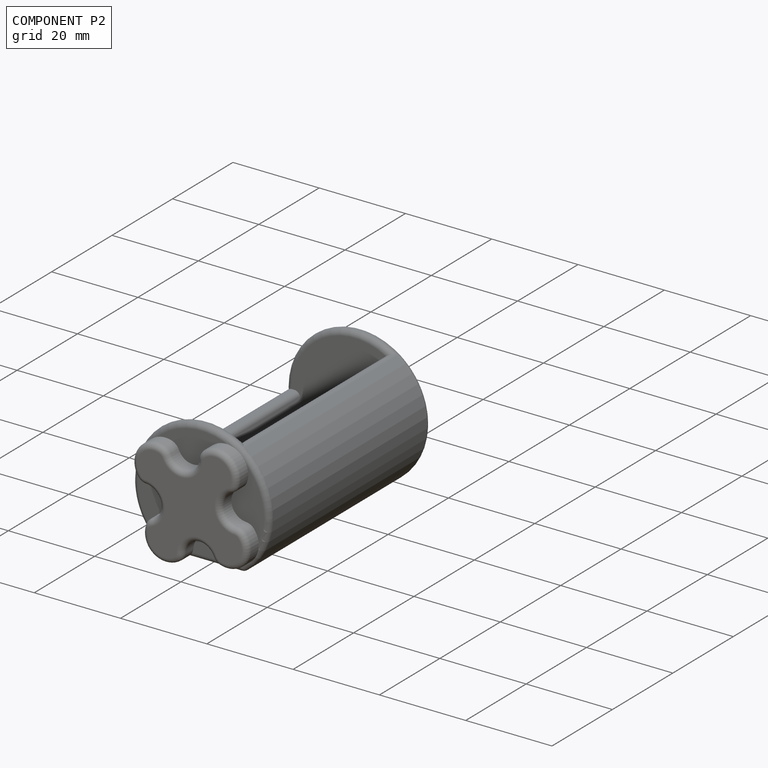
[diagram: component P2 — assembled]
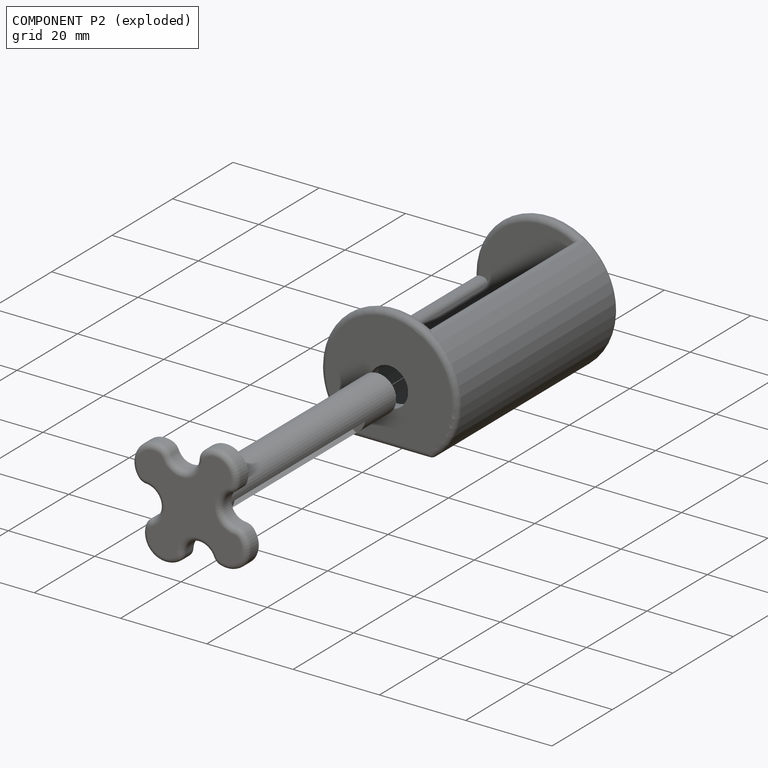
[diagram: component P2 — exploded]
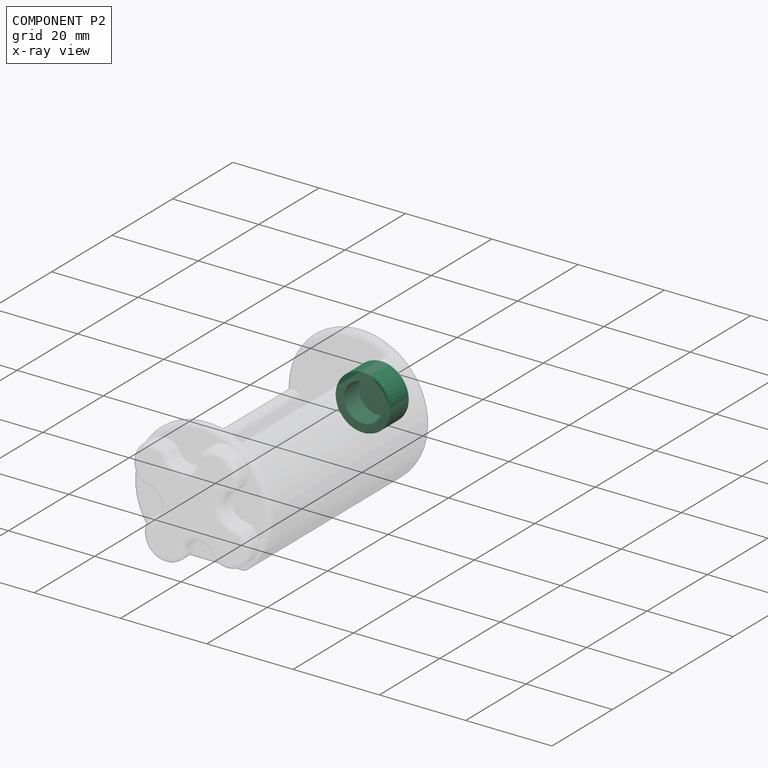
[diagram: component P2 — x-ray view]
COMPONENT P2 — recipe-attached (CADFS 00831640, mesh-verified: the recipe's output STEP matches this component's geometry to below the mesh-comparison resolution (tessellation chordal tolerance ~0.0285 mm)).
Held by: FASTENED mate "Fastened 1" to P0.
Construction recipe (FeatureScript — the CAD program that rebuilds this solid; sketch coordinates are in the units given by the * unit suffixes, e.g. mm):

FeatureScript 1511;
import(path : "onshape/std/geometry.fs", version : "1511.0");
import(path : "onshape/std/common.fs", version : "1511.0");
const mm = millimeter;
const VERTEX = EntityType.VERTEX;
const EDGE = EntityType.EDGE;
const FACE = EntityType.FACE;
const BODY = EntityType.BODY;
function v(x, y){return vector(x, y);}
function OD(order){return orderDisambiguation(order);}
function OSD(set){return originalSetDisambiguation(set);}
function TD(topology){return topologyDisambiguation(topology);}
function TDD(query){return trueDependencyDisambiguation(query);}
function sQuery(a, b, c) {return sketchEntityQuery(a, b, c);}

annotation { "Feature Type Name" : "Feature", "Feature Type Description" : "" }
export const myFeature = defineFeature(function(context is Context, id is Id, definition is map)
    precondition{}
    {
        {
            var Q0;
            Q0=qCreatedBy(makeId("Front.planeOp"),FACE);
            var sketch = newSketch(context, id + "F0", { "sketchPlane" : qUnion([Q0])});
            skCircle(sketch, "E0", {"center": v(0, 0) * mm, "radius": 6.35 * mm});
            skCircle(sketch, "E1", {"center": v(0, 0) * mm, "radius": 4.38 * mm});
            skSolve(sketch);
        }
        {
            var Q0;
            Q0 = qSketchRegion(id + "F0", true);
            extrude(context, id + "F1", {"entities" : qUnion([Q0]), "depth" : 6.1 * mm, "offsetDistance" : 25.4 * mm});
        }
        {
            var Q0;
            Q0=makeQuery(id+"F0.imprint","IMPRINT",FACE,{"disambiguationData":[TD([[makeQuery(id+"F0.imprint","IMPRINT",EDGE,{"derivedFrom":sQuery(id+"F0.wireOp",EDGE,"E1")}),1.0]])]});
            extrude(context, id + "F2", {"entities" : qUnion([Q0]), "operationType" : NewBodyOperationType.ADD, "depth" : 1.27 * mm, "offsetDistance" : 25.4 * mm});
        }
    });
PROVENANCE & LICENSES
Assembly (occurrences, transforms, mates, per-part STEP geometry): AutoMate dataset, Zenodo record 7776208, CC0.
Construction recipes: CADFS (HuggingFace VladPyatov/CADFS, CC-BY-4.0, layered over the ABC dataset), FeatureScript reconstruction programs keyed by ABC model id.
Join: ABC meta listings map ABC model id -> Onshape documentId; within a shared document, parts are matched by geometric signature (bounding-box dims + volume at 0.1% relative tolerance, exact B-rep face/solid counts).
Verification: 3 of this assembly's 3 components carry a recipe attachment, and every attachment is mesh-verified: the CADFS STEP and the AutoMate member STEP were compared as meshes in their shared local frame (symmetric sampled-point-to-mesh distance); worst across the 3 attachments: below the mesh-comparison resolution (tessellation chordal tolerance ~0.114 mm) on a 76 mm part.
Renders: orthographic iso camera (az 35 / el 25); the floor grid conveys scale (grid pitch printed in each image; no ruler). In the exploded view each component is displaced by its stored offset vector: the offsets alone carry the explosion direction (mate normal/axis signs are not orientation cues and do not encode it), and separation distances are assigned per mate-chain, not proportionally to assembly-order depth.
